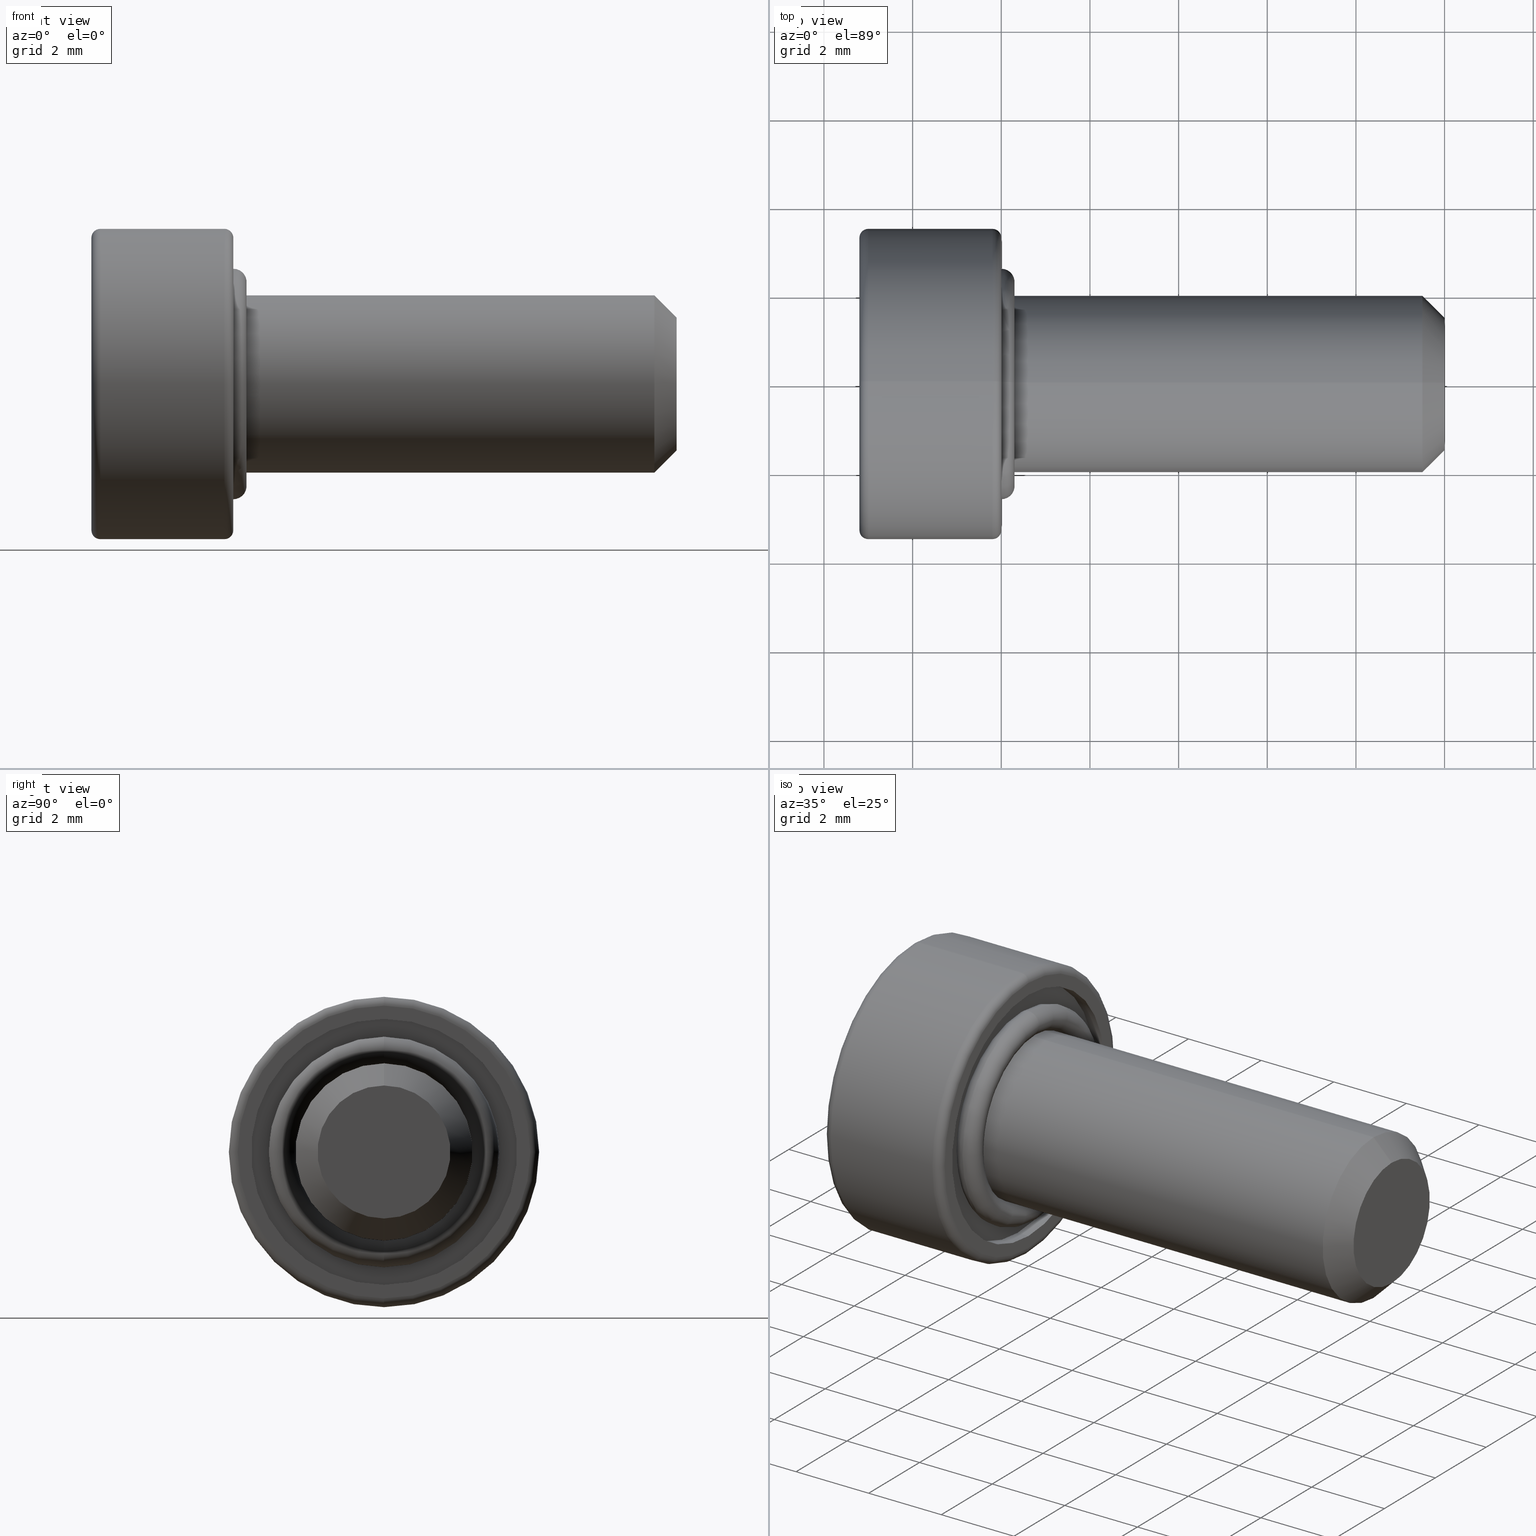
[diagram: canonical four-view strip — front | top / right | iso, engineering-drawing reading convention]
A machine part, canonical four-view strip (front | top / right | iso — engineering-drawing reading convention). The complete STEP part file that produces these views, byte-faithful:
ISO-10303-21;
HEADER;
FILE_DESCRIPTION (( 'STEP AP214' ),
    '1' );
FILE_NAME ('TL_418_M4_10.STEP',
    '2016-01-25T00:05:31',
    ( '' ),
    ( '' ),
    'SwSTEP 2.0',
    'SolidWorks 2015',
    '' );
FILE_SCHEMA (( 'AUTOMOTIVE_DESIGN' ));
ENDSEC;

DATA;
#1 = CARTESIAN_POINT ( 'NONE',  ( -3.200000000000000200, 0.0000000000000000000, 0.0000000000000000000 ) ) ;
#2 = VERTEX_POINT ( 'NONE', #151 ) ;
#3 = VECTOR ( 'NONE', #654, 1000.000000000000000 ) ;
#4 = DIRECTION ( 'NONE',  ( 0.0000000000000000000, 0.0000000000000000000, -1.000000000000000000 ) ) ;
#5 = FACE_OUTER_BOUND ( 'NONE', #79, .T. ) ;
#6 = ORIENTED_EDGE ( 'NONE', *, *, #53, .T. ) ;
#7 = DIRECTION ( 'NONE',  ( 1.000000000000000000, 0.0000000000000000000, 0.0000000000000000000 ) ) ;
#8 = AXIS2_PLACEMENT_3D ( 'NONE', #129, #391, #623 ) ;
#9 = CIRCLE ( 'NONE', #85, 1.500000000000003100 ) ;
#10 = DIRECTION ( 'NONE',  ( 1.000000000000000000, 0.0000000000000000000, 0.0000000000000000000 ) ) ;
#11 = CARTESIAN_POINT ( 'NONE',  ( 0.0000000000000000000, 0.0000000000000000000, 0.0000000000000000000 ) ) ;
#12 = CARTESIAN_POINT ( 'NONE',  ( -0.2999999999999999900, 0.0000000000000000000, 0.0000000000000000000 ) ) ;
#13 = VERTEX_POINT ( 'NONE', #40 ) ;
#14 = DIRECTION ( 'NONE',  ( 1.000000000000000000, -0.0000000000000000000, -0.0000000000000000000 ) ) ;
#15 = SHAPE_REPRESENTATION_RELATIONSHIP ( 'NONE' , 'NONE' ,  #735, #580 ) ;
#16 = EDGE_CURVE ( 'NONE', #581, #538, #692, .T. ) ;
#17 = ORIENTED_EDGE ( 'NONE', *, *, #741, .F. ) ;
#18 = CARTESIAN_POINT ( 'NONE',  ( 0.0000000000000000000, 0.0000000000000000000, 0.0000000000000000000 ) ) ;
#19 = CIRCLE ( 'NONE', #291, 2.000000000000000000 ) ;
#20 = EDGE_CURVE ( 'NONE', #77, #47, #354, .T. ) ;
#21 = CARTESIAN_POINT ( 'NONE',  ( -3.200000000000000200, 0.7216878364870081800, -1.250000000000022200 ) ) ;
#22 = ORIENTED_EDGE ( 'NONE', *, *, #532, .F. ) ;
#23 = CARTESIAN_POINT ( 'NONE',  ( -0.2999999999999999900, 0.0000000000000000000, 2.000000000000000000 ) ) ;
#24 = VERTEX_POINT ( 'NONE', #165 ) ;
#25 = CARTESIAN_POINT ( 'NONE',  ( 0.0000000000000000000, 0.0000000000000000000, 0.0000000000000000000 ) ) ;
#26 = ORIENTED_EDGE ( 'NONE', *, *, #512, .T. ) ;
#27 = SURFACE_SIDE_STYLE ('',( #604 ) ) ;
#28 = CARTESIAN_POINT ( 'NONE',  ( -0.2999999999999999900, 0.0000000000000000000, 0.0000000000000000000 ) ) ;
#29 =( NAMED_UNIT ( * ) PLANE_ANGLE_UNIT ( ) SI_UNIT ( $, .RADIAN. ) );
#30 = ORIENTED_EDGE ( 'NONE', *, *, #743, .F. ) ;
#31 = DIRECTION ( 'NONE',  ( -0.0000000000000000000, 1.000000000000000000, 1.502314598737123300E-016 ) ) ;
#32 = CARTESIAN_POINT ( 'NONE',  ( -1.900000000000000100, 0.0000000000000000000, 0.0000000000000000000 ) ) ;
#33 = DIRECTION ( 'NONE',  ( 0.0000000000000000000, 0.0000000000000000000, -1.000000000000000000 ) ) ;
#34 = LINE ( 'NONE', #317, #517 ) ;
#35 = CLOSED_SHELL ( 'NONE', ( #675, #812, #122, #807 ) ) ;
#36 = CARTESIAN_POINT ( 'NONE',  ( 0.0000000000000000000, 0.0000000000000000000, 0.0000000000000000000 ) ) ;
#37 = CARTESIAN_POINT ( 'NONE',  ( 10.00000000000000000, 0.0000000000000000000, 2.000000000000000000 ) ) ;
#38 = ORIENTED_EDGE ( 'NONE', *, *, #404, .F. ) ;
#39 = VECTOR ( 'NONE', #709, 1000.000000000000000 ) ;
#40 = CARTESIAN_POINT ( 'NONE',  ( 0.0000000000000000000, 0.0000000000000000000, -3.000000000000000400 ) ) ;
#41 = DIRECTION ( 'NONE',  ( 1.000000000000000000, 0.0000000000000000000, 0.0000000000000000000 ) ) ;
#42 = CARTESIAN_POINT ( 'NONE',  ( -3.200000000000000200, 1.443375672974113000, -2.406411063411982600E-014 ) ) ;
#43 = FILL_AREA_STYLE ('',( #445 ) ) ;
#44 = VERTEX_POINT ( 'NONE', #633 ) ;
#45 = VECTOR ( 'NONE', #284, 1000.000000000000000 ) ;
#46 = SURFACE_STYLE_USAGE ( .BOTH. , #27 ) ;
#47 = VERTEX_POINT ( 'NONE', #111 ) ;
#48 = VECTOR ( 'NONE', #524, 1000.000000000000000 ) ;
#49 = VERTEX_POINT ( 'NONE', #336 ) ;
#50 = CARTESIAN_POINT ( 'NONE',  ( -1.900000000000000100, 0.7216878364870081800, -1.250000000000022200 ) ) ;
#51 =( GEOMETRIC_REPRESENTATION_CONTEXT ( 3 ) GLOBAL_UNCERTAINTY_ASSIGNED_CONTEXT ( ( #68 ) ) GLOBAL_UNIT_ASSIGNED_CONTEXT ( ( #272, #266, #230 ) ) REPRESENTATION_CONTEXT ( 'NONE', 'WORKASPACE' ) );
#53 = EDGE_CURVE ( 'NONE', #444, #803, #676, .T. ) ;
#52 = ORIENTED_EDGE ( 'NONE', *, *, #484, .F. ) ;
#54 = CARTESIAN_POINT ( 'NONE',  ( -1.900000000000000100, -0.7216878364870932300, -1.250000000000020900 ) ) ;
#55 = LINE ( 'NONE', #194, #363 ) ;
#56 = CARTESIAN_POINT ( 'NONE',  ( -0.2000000000000000900, 4.041334437186266000E-016, 3.300000000000000300 ) ) ;
#57 = CIRCLE ( 'NONE', #473, 2.600000000000000500 ) ;
#58 = STYLED_ITEM ( 'NONE', ( #376 ), #580 ) ;
#59 = ORIENTED_EDGE ( 'NONE', *, *, #661, .F. ) ;
#60 = EDGE_LOOP ( 'NONE', ( #277, #669, #723, #608 ) ) ;
#61 = EDGE_CURVE ( 'NONE', #90, #49, #199, .T. ) ;
#62 = VECTOR ( 'NONE', #790, 1000.000000000000000 ) ;
#63 = ORIENTED_EDGE ( 'NONE', *, *, #747, .F. ) ;
#64 = DIRECTION ( 'NONE',  ( 0.0000000000000000000, 0.0000000000000000000, -1.000000000000000000 ) ) ;
#65 = ADVANCED_FACE ( 'NONE', ( #335 ), #466, .F. ) ;
#66 = EDGE_CURVE ( 'NONE', #438, #507, #659, .T. ) ;
#67 = CARTESIAN_POINT ( 'NONE',  ( -3.200000000000000200, -0.7216878364870932300, -1.250000000000020900 ) ) ;
#68 = UNCERTAINTY_MEASURE_WITH_UNIT (LENGTH_MEASURE( 1.000000000000000100E-005 ), #272, 'distance_accuracy_value', 'NONE');
#69 = DIRECTION ( 'NONE',  ( 1.000000000000000000, -0.0000000000000000000, 0.0000000000000000000 ) ) ;
#70 = FACE_OUTER_BOUND ( 'NONE', #591, .T. ) ;
#71 = FILL_AREA_STYLE ('',( #436 ) ) ;
#72 = CARTESIAN_POINT ( 'NONE',  ( -0.2999999999999999900, 0.0000000000000000000, -3.000000000000000400 ) ) ;
#73 = ORIENTED_EDGE ( 'NONE', *, *, #575, .F. ) ;
#74 = PRODUCT_DEFINITION_SHAPE ( 'NONE', 'NONE',  #548 ) ;
#75 = LINE ( 'NONE', #72, #713 ) ;
#76 = DIRECTION ( 'NONE',  ( 1.000000000000000000, 0.0000000000000000000, 0.0000000000000000000 ) ) ;
#77 = VERTEX_POINT ( 'NONE', #586 ) ;
#78 = CARTESIAN_POINT ( 'NONE',  ( -3.000000000000000000, 0.0000000000000000000, 0.0000000000000000000 ) ) ;
#79 = EDGE_LOOP ( 'NONE', ( #186, #123, #333, #525, #344, #389 ) ) ;
#80 = FACE_OUTER_BOUND ( 'NONE', #60, .T. ) ;
#81 = PLANE ( 'NONE',  #233 ) ;
#82 = DIRECTION ( 'NONE',  ( 1.000000000000000000, 0.0000000000000000000, 0.0000000000000000000 ) ) ;
#83 = DIRECTION ( 'NONE',  ( 0.0000000000000000000, 1.000000000000000000, -1.224646799147353200E-016 ) ) ;
#84 = CONICAL_SURFACE ( 'NONE', #637, 1.500000000000003100, 0.7853981633974465000 ) ;
#85 = AXIS2_PLACEMENT_3D ( 'NONE', #520, #805, #343 ) ;
#86 = EDGE_CURVE ( 'NONE', #435, #109, #19, .T. ) ;
#87 = DIRECTION ( 'NONE',  ( -1.000000000000000000, -0.0000000000000000000, -0.0000000000000000000 ) ) ;
#88 = ORIENTED_EDGE ( 'NONE', *, *, #681, .F. ) ;
#89 = DIRECTION ( 'NONE',  ( 1.000000000000000000, -0.0000000000000000000, -0.0000000000000000000 ) ) ;
#90 = VERTEX_POINT ( 'NONE', #258 ) ;
#91 = CARTESIAN_POINT ( 'NONE',  ( 0.0000000000000000000, 0.0000000000000000000, -2.300000000000000300 ) ) ;
#92 = CARTESIAN_POINT ( 'NONE',  ( 10.00000000000000000, 0.0000000000000000000, 0.0000000000000000000 ) ) ;
#93 = DIRECTION ( 'NONE',  ( -1.000000000000000000, -0.0000000000000000000, -0.0000000000000000000 ) ) ;
#94 = PRESENTATION_LAYER_ASSIGNMENT (  '', '', ( #58 ) ) ;
#95 = DIRECTION ( 'NONE',  ( 0.0000000000000000000, 0.0000000000000000000, -1.000000000000000000 ) ) ;
#96 = ORIENTED_EDGE ( 'NONE', *, *, #254, .T. ) ;
#97 = LINE ( 'NONE', #221, #569 ) ;
#98 = EDGE_CURVE ( 'NONE', #360, #90, #487, .T. ) ;
#99 = ORIENTED_EDGE ( 'NONE', *, *, #655, .F. ) ;
#100 = EDGE_CURVE ( 'NONE', #2, #662, #310, .T. ) ;
#101 = VERTEX_POINT ( 'NONE', #782 ) ;
#102 = DIRECTION ( 'NONE',  ( 0.0000000000000000000, 0.0000000000000000000, -1.000000000000000000 ) ) ;
#103 = DIRECTION ( 'NONE',  ( 0.0000000000000000000, 0.0000000000000000000, -1.000000000000000000 ) ) ;
#104 = TOROIDAL_SURFACE ( 'NONE', #324, 3.300000000000000300, 0.2000000000000000100 ) ;
#105 =( NAMED_UNIT ( * ) SI_UNIT ( $, .STERADIAN. ) SOLID_ANGLE_UNIT ( ) );
#106 = VERTEX_POINT ( 'NONE', #210 ) ;
#107 = DIRECTION ( 'NONE',  ( -0.0000000000000000000, -1.000000000000000000, -0.0000000000000000000 ) ) ;
#108 = CARTESIAN_POINT ( 'NONE',  ( -1.900000000000000100, 0.7216878364870081800, -1.250000000000022200 ) ) ;
#109 = VERTEX_POINT ( 'NONE', #147 ) ;
#110 = DIRECTION ( 'NONE',  ( 1.000000000000000000, 0.0000000000000000000, 0.0000000000000000000 ) ) ;
#111 = CARTESIAN_POINT ( 'NONE',  ( -3.200000000000000200, -0.7216878364870070700, 1.250000000000022400 ) ) ;
#112 = COLOUR_RGB ( '',0.7921568627450980000, 0.8196078431372548800, 0.9333333333333333500 ) ;
#113 = VECTOR ( 'NONE', #551, 1000.000000000000200 ) ;
#114 = VERTEX_POINT ( 'NONE', #478 ) ;
#115 = AXIS2_PLACEMENT_3D ( 'NONE', #32, #69, #240 ) ;
#116 = ADVANCED_FACE ( 'NONE', ( #293 ), #162, .T. ) ;
#117 = PLANE ( 'NONE',  #553 ) ;
#118 = ORIENTED_EDGE ( 'NONE', *, *, #571, .T. ) ;
#119 = ADVANCED_FACE ( 'NONE', ( #634, #143 ), #117, .F. ) ;
#120 = LINE ( 'NONE', #789, #256 ) ;
#121 = ORIENTED_EDGE ( 'NONE', *, *, #404, .T. ) ;
#122 = ADVANCED_FACE ( 'NONE', ( #469 ), #615, .T. ) ;
#123 = ORIENTED_EDGE ( 'NONE', *, *, #730, .T. ) ;
#124 = EDGE_LOOP ( 'NONE', ( #164, #773, #462, #698, #750, #329 ) ) ;
#125 = CARTESIAN_POINT ( 'NONE',  ( -3.200000000000000200, 0.0000000000000000000, 0.0000000000000000000 ) ) ;
#126 = AXIS2_PLACEMENT_3D ( 'NONE', #537, #216, #543 ) ;
#127 = EDGE_CURVE ( 'NONE', #538, #625, #180, .T. ) ;
#128 = LINE ( 'NONE', #166, #368 ) ;
#129 = CARTESIAN_POINT ( 'NONE',  ( 0.0000000000000000000, 0.0000000000000000000, 0.0000000000000000000 ) ) ;
#130 = CARTESIAN_POINT ( 'NONE',  ( 0.0000000000000000000, 0.0000000000000000000, 0.0000000000000000000 ) ) ;
#131 = CARTESIAN_POINT ( 'NONE',  ( -3.000000000000000000, 0.0000000000000000000, 0.0000000000000000000 ) ) ;
#132 = CYLINDRICAL_SURFACE ( 'NONE', #712, 3.000000000000000400 ) ;
#133 = VECTOR ( 'NONE', #377, 1000.000000000000100 ) ;
#134 = CARTESIAN_POINT ( 'NONE',  ( 0.0000000000000000000, 0.0000000000000000000, 0.0000000000000000000 ) ) ;
#135 = CARTESIAN_POINT ( 'NONE',  ( -3.000000000000000000, 4.041334437186266000E-016, 3.300000000000000300 ) ) ;
#136 = MECHANICAL_DESIGN_GEOMETRIC_PRESENTATION_REPRESENTATION (  '', ( #58 ), #177 ) ;
#137 = DIRECTION ( 'NONE',  ( 0.0000000000000000000, 1.000000000000000000, -9.013887592422725400E-016 ) ) ;
#138 = DIRECTION ( 'NONE',  ( 1.000000000000000000, 0.0000000000000000000, 0.0000000000000000000 ) ) ;
#139 =( LENGTH_UNIT ( ) NAMED_UNIT ( * ) SI_UNIT ( .MILLI., .METRE. ) );
#140 = EDGE_CURVE ( 'NONE', #738, #44, #448, .T. ) ;
#141 = EDGE_CURVE ( 'NONE', #799, #44, #798, .T. ) ;
#142 = DIRECTION ( 'NONE',  ( 0.0000000000000000000, -0.5000000000000395200, -0.8660254037844157300 ) ) ;
#143 = FACE_OUTER_BOUND ( 'NONE', #756, .T. ) ;
#144 = PLANE ( 'NONE',  #414 ) ;
#145 = EDGE_LOOP ( 'NONE', ( #397, #297, #583, #602 ) ) ;
#146 = ORIENTED_EDGE ( 'NONE', *, *, #730, .F. ) ;
#147 = CARTESIAN_POINT ( 'NONE',  ( 9.500000000000001800, 0.0000000000000000000, 2.000000000000000000 ) ) ;
#148 = CARTESIAN_POINT ( 'NONE',  ( -3.000000000000000000, 4.286263797015737100E-016, 3.500000000000000400 ) ) ;
#149 = DIRECTION ( 'NONE',  ( 0.0000000000000000000, 0.0000000000000000000, -1.000000000000000000 ) ) ;
#150 = CIRCLE ( 'NONE', #584, 3.500000000000000400 ) ;
#151 = CARTESIAN_POINT ( 'NONE',  ( -3.200000000000000200, 0.7216878364870920000, 1.250000000000022600 ) ) ;
#152 = PRODUCT_CONTEXT ( 'NONE', #793, 'mechanical' ) ;
#153 = LINE ( 'NONE', #558, #133 ) ;
#154 = CARTESIAN_POINT ( 'NONE',  ( -1.900000000000000100, 0.7216878364870081800, -1.250000000000022200 ) ) ;
#155 = PRESENTATION_STYLE_ASSIGNMENT (( #204 ) ) ;
#156 = CARTESIAN_POINT ( 'NONE',  ( -3.200000000000000200, 0.0000000000000000000, 0.0000000000000000000 ) ) ;
#157 = AXIS2_PLACEMENT_3D ( 'NONE', #314, #648, #255 ) ;
#158 = DIRECTION ( 'NONE',  ( 0.0000000000000000000, 0.0000000000000000000, -1.000000000000000000 ) ) ;
#159 = CARTESIAN_POINT ( 'NONE',  ( -1.900000000000000100, -1.443375672974113600, 2.556978512743960800E-014 ) ) ;
#160 = ORIENTED_EDGE ( 'NONE', *, *, #98, .F. ) ;
#161 = DIRECTION ( 'NONE',  ( -1.000000000000000000, -0.0000000000000000000, -0.0000000000000000000 ) ) ;
#162 = TOROIDAL_SURFACE ( 'NONE', #470, 3.300000000000000300, 0.2000000000000000100 ) ;
#163 = DIRECTION ( 'NONE',  ( -0.0000000000000000000, -1.000000000000000000, -0.0000000000000000000 ) ) ;
#164 = ORIENTED_EDGE ( 'NONE', *, *, #295, .F. ) ;
#165 = CARTESIAN_POINT ( 'NONE',  ( 0.0000000000000000000, 3.673940397442060400E-016, 3.000000000000000400 ) ) ;
#166 = CARTESIAN_POINT ( 'NONE',  ( 10.00000000000000000, 0.0000000000000000000, 1.500000000000003100 ) ) ;
#167 = AXIS2_PLACEMENT_3D ( 'NONE', #173, #632, #456 ) ;
#168 = EDGE_CURVE ( 'NONE', #549, #435, #120, .T. ) ;
#169 = EDGE_LOOP ( 'NONE', ( #588, #566, #337, #640 ) ) ;
#170 = LINE ( 'NONE', #636, #3 ) ;
#171 = PRODUCT_DEFINITION_SHAPE ( 'NONE', 'NONE',  #820 ) ;
#172 = CYLINDRICAL_SURFACE ( 'NONE', #672, 3.500000000000000400 ) ;
#173 = CARTESIAN_POINT ( 'NONE',  ( 0.0000000000000000000, 0.0000000000000000000, 0.0000000000000000000 ) ) ;
#174 = EDGE_LOOP ( 'NONE', ( #616, #791, #175, #816 ) ) ;
#175 = ORIENTED_EDGE ( 'NONE', *, *, #797, .T. ) ;
#176 = SURFACE_STYLE_FILL_AREA ( #43 ) ;
#177 =( GEOMETRIC_REPRESENTATION_CONTEXT ( 3 ) GLOBAL_UNCERTAINTY_ASSIGNED_CONTEXT ( ( #429 ) ) GLOBAL_UNIT_ASSIGNED_CONTEXT ( ( #627, #563, #641 ) ) REPRESENTATION_CONTEXT ( 'NONE', 'WORKASPACE' ) );
#178 = EDGE_LOOP ( 'NONE', ( #502, #332, #600, #220 ) ) ;
#179 = ADVANCED_FACE ( 'NONE', ( #774 ), #84, .T. ) ;
#180 = LINE ( 'NONE', #67, #276 ) ;
#181 = AXIS2_PLACEMENT_3D ( 'NONE', #401, #705, #472 ) ;
#182 = VERTEX_POINT ( 'NONE', #362 ) ;
#183 = FILL_AREA_STYLE_COLOUR ( '', #452 ) ;
#184 = EDGE_CURVE ( 'NONE', #302, #581, #241, .T. ) ;
#185 = FACE_OUTER_BOUND ( 'NONE', #451, .T. ) ;
#186 = ORIENTED_EDGE ( 'NONE', *, *, #701, .T. ) ;
#187 = ADVANCED_FACE ( 'NONE', ( #579 ), #559, .T. ) ;
#188 = DIRECTION ( 'NONE',  ( 0.0000000000000000000, 0.0000000000000000000, -1.000000000000000000 ) ) ;
#189 = FACE_OUTER_BOUND ( 'NONE', #415, .T. ) ;
#190 = CARTESIAN_POINT ( 'NONE',  ( -1.900000000000000100, -0.7216878364870932300, -1.250000000000020900 ) ) ;
#191 = CIRCLE ( 'NONE', #511, 3.300000000000000300 ) ;
#192 = ORIENTED_EDGE ( 'NONE', *, *, #532, .T. ) ;
#193 = SURFACE_STYLE_USAGE ( .BOTH. , #690 ) ;
#194 = CARTESIAN_POINT ( 'NONE',  ( -3.200000000000000200, -1.443375672974113600, 2.556978512743960800E-014 ) ) ;
#195 = PRODUCT ( 'screw', 'screw', '', ( #152 ) ) ;
#196 = ORIENTED_EDGE ( 'NONE', *, *, #658, .F. ) ;
#197 = AXIS2_PLACEMENT_3D ( 'NONE', #361, #748, #296 ) ;
#198 = DIRECTION ( 'NONE',  ( 0.0000000000000000000, -9.013887592422725400E-016, -1.000000000000000000 ) ) ;
#199 = CIRCLE ( 'NONE', #224, 2.600000000000000500 ) ;
#200 = EDGE_LOOP ( 'NONE', ( #374, #465, #499, #22 ) ) ;
#201 = DIRECTION ( 'NONE',  ( 0.0000000000000000000, 0.0000000000000000000, -1.000000000000000000 ) ) ;
#202 = LINE ( 'NONE', #159, #508 ) ;
#203 = ORIENTED_EDGE ( 'NONE', *, *, #86, .T. ) ;
#204 = SURFACE_STYLE_USAGE ( .BOTH. , #318 ) ;
#205 = UNCERTAINTY_MEASURE_WITH_UNIT (LENGTH_MEASURE( 1.000000000000000100E-005 ), #139, 'distance_accuracy_value', 'NONE');
#206 = DIRECTION ( 'NONE',  ( 0.0000000000000000000, 0.0000000000000000000, -1.000000000000000000 ) ) ;
#207 = AXIS2_PLACEMENT_3D ( 'NONE', #396, #110, #33 ) ;
#208 = CARTESIAN_POINT ( 'NONE',  ( 0.0000000000000000000, 2.816687638038912500E-016, 2.300000000000000300 ) ) ;
#209 = CIRCLE ( 'NONE', #370, 0.2999999999999999300 ) ;
#210 = CARTESIAN_POINT ( 'NONE',  ( -3.200000000000000200, 0.0000000000000000000, -3.300000000000000300 ) ) ;
#211 = ORIENTED_EDGE ( 'NONE', *, *, #575, .T. ) ;
#212 = DIRECTION ( 'NONE',  ( 0.0000000000000000000, 0.0000000000000000000, -1.000000000000000000 ) ) ;
#213 = FACE_OUTER_BOUND ( 'NONE', #638, .T. ) ;
#214 = ORIENTED_EDGE ( 'NONE', *, *, #536, .T. ) ;
#215 = DIRECTION ( 'NONE',  ( -1.000000000000000000, -0.0000000000000000000, -0.0000000000000000000 ) ) ;
#216 = DIRECTION ( 'NONE',  ( -1.000000000000000000, 0.0000000000000000000, 0.0000000000000000000 ) ) ;
#217 = CARTESIAN_POINT ( 'NONE',  ( -3.200000000000000200, -0.7216878364870070700, 1.250000000000022400 ) ) ;
#218 = DIRECTION ( 'NONE',  ( 1.000000000000000000, 0.0000000000000000000, 0.0000000000000000000 ) ) ;
#219 = ORIENTED_EDGE ( 'NONE', *, *, #779, .T. ) ;
#220 = ORIENTED_EDGE ( 'NONE', *, *, #384, .F. ) ;
#221 = CARTESIAN_POINT ( 'NONE',  ( -1.900000000000000100, 0.7216878364870920000, 1.250000000000022600 ) ) ;
#222 = ORIENTED_EDGE ( 'NONE', *, *, #439, .T. ) ;
#223 = LINE ( 'NONE', #54, #62 ) ;
#224 = AXIS2_PLACEMENT_3D ( 'NONE', #25, #393, #158 ) ;
#225 = EDGE_CURVE ( 'NONE', #101, #799, #426, .T. ) ;
#226 = CARTESIAN_POINT ( 'NONE',  ( -3.200000000000000200, 0.0000000000000000000, -3.500000000000000400 ) ) ;
#227 = FACE_OUTER_BOUND ( 'NONE', #736, .T. ) ;
#228 = ADVANCED_FACE ( 'NONE', ( #749 ), #506, .F. ) ;
#229 = VERTEX_POINT ( 'NONE', #242 ) ;
#230 =( NAMED_UNIT ( * ) SI_UNIT ( $, .STERADIAN. ) SOLID_ANGLE_UNIT ( ) );
#231 = EDGE_LOOP ( 'NONE', ( #279, #30, #815, #765 ) ) ;
#232 = ORIENTED_EDGE ( 'NONE', *, *, #599, .T. ) ;
#233 = AXIS2_PLACEMENT_3D ( 'NONE', #700, #7, #501 ) ;
#234 = ORIENTED_EDGE ( 'NONE', *, *, #53, .F. ) ;
#235 = VECTOR ( 'NONE', #87, 1000.000000000000000 ) ;
#236 = ORIENTED_EDGE ( 'NONE', *, *, #127, .T. ) ;
#237 = DIRECTION ( 'NONE',  ( 1.000000000000000000, 0.0000000000000000000, 0.0000000000000000000 ) ) ;
#238 = ADVANCED_FACE ( 'NONE', ( #227 ), #104, .T. ) ;
#239 = ORIENTED_EDGE ( 'NONE', *, *, #225, .F. ) ;
#240 = DIRECTION ( 'NONE',  ( 0.0000000000000000000, 0.0000000000000000000, -1.000000000000000000 ) ) ;
#241 = LINE ( 'NONE', #154, #409 ) ;
#242 = CARTESIAN_POINT ( 'NONE',  ( -1.900000000000000100, -1.443375672974113600, 2.556978512743960800E-014 ) ) ;
#243 = ORIENTED_EDGE ( 'NONE', *, *, #304, .T. ) ;
#244 =( NAMED_UNIT ( * ) SI_UNIT ( $, .STERADIAN. ) SOLID_ANGLE_UNIT ( ) );
#245 = CARTESIAN_POINT ( 'NONE',  ( -3.673940397442058300E-017, 0.0000000000000000000, 0.0000000000000000000 ) ) ;
#246 =( NAMED_UNIT ( * ) PLANE_ANGLE_UNIT ( ) SI_UNIT ( $, .RADIAN. ) );
#247 = DIRECTION ( 'NONE',  ( 0.0000000000000000000, 0.0000000000000000000, 1.000000000000000000 ) ) ;
#248 = PRODUCT ( 'TL_418_M4_10', 'TL_418_M4_10', '', ( #720 ) ) ;
#249 = ORIENTED_EDGE ( 'NONE', *, *, #536, .F. ) ;
#250 = VECTOR ( 'NONE', #263, 1000.000000000000000 ) ;
#251 =( REPRESENTATION_RELATIONSHIP ('NONE','NONE', #271, #735 ) REPRESENTATION_RELATIONSHIP_WITH_TRANSFORMATION ( #275 )SHAPE_REPRESENTATION_RELATIONSHIP( ) );
#252 = DIRECTION ( 'NONE',  ( 0.0000000000000000000, 0.0000000000000000000, -1.000000000000000000 ) ) ;
#253 = DIRECTION ( 'NONE',  ( 0.0000000000000000000, 0.0000000000000000000, -1.000000000000000000 ) ) ;
#254 = EDGE_CURVE ( 'NONE', #438, #47, #388, .T. ) ;
#255 = DIRECTION ( 'NONE',  ( 0.0000000000000000000, 0.0000000000000000000, -1.000000000000000000 ) ) ;
#256 = VECTOR ( 'NONE', #652, 999.9999999999998900 ) ;
#257 = EDGE_LOOP ( 'NONE', ( #677, #273 ) ) ;
#258 = CARTESIAN_POINT ( 'NONE',  ( 0.0000000000000000000, 3.184081677783118700E-016, 2.600000000000000500 ) ) ;
#259 = DIRECTION ( 'NONE',  ( 1.000000000000000000, 0.0000000000000000000, 0.0000000000000000000 ) ) ;
#260 = DIRECTION ( 'NONE',  ( 1.000000000000000000, 0.0000000000000000000, 0.0000000000000000000 ) ) ;
#261 = CARTESIAN_POINT ( 'NONE',  ( -0.2999999999999999900, 0.0000000000000000000, 0.0000000000000000000 ) ) ;
#262 = CARTESIAN_POINT ( 'NONE',  ( -1.900000000000000100, 0.7216878364870920000, 1.250000000000022600 ) ) ;
#263 = DIRECTION ( 'NONE',  ( 1.000000000000000000, 0.0000000000000000000, 0.0000000000000000000 ) ) ;
#264 = CARTESIAN_POINT ( 'NONE',  ( 0.0000000000000000000, 2.816687638038912500E-016, 2.300000000000000300 ) ) ;
#265 = VECTOR ( 'NONE', #31, 1000.000000000000000 ) ;
#266 =( NAMED_UNIT ( * ) PLANE_ANGLE_UNIT ( ) SI_UNIT ( $, .RADIAN. ) );
#267 = CIRCLE ( 'NONE', #305, 3.500000000000000400 ) ;
#268 = DIRECTION ( 'NONE',  ( -0.0000000000000000000, 0.4999999999999800700, -0.8660254037844501400 ) ) ;
#269 = EDGE_LOOP ( 'NONE', ( #6, #211 ) ) ;
#270 = CARTESIAN_POINT ( 'NONE',  ( 0.0000000000000000000, 4.163799117101001500E-016, 3.300000000000000300 ) ) ;
#271 = SHAPE_REPRESENTATION ( 'TL_418_M4_10', ( #417, #330 ), #375 ) ;
#272 =( LENGTH_UNIT ( ) NAMED_UNIT ( * ) SI_UNIT ( .MILLI., .METRE. ) );
#273 = ORIENTED_EDGE ( 'NONE', *, *, #488, .F. ) ;
#274 = AXIS2_PLACEMENT_3D ( 'NONE', #245, #704, #301 ) ;
#275 = ITEM_DEFINED_TRANSFORMATION ( 'NONE', 'NONE', #330,  #8 ) ;
#276 = VECTOR ( 'NONE', #814, 1000.000000000000000 ) ;
#277 = ORIENTED_EDGE ( 'NONE', *, *, #304, .F. ) ;
#278 = DIRECTION ( 'NONE',  ( 0.0000000000000000000, 0.0000000000000000000, -1.000000000000000000 ) ) ;
#279 = ORIENTED_EDGE ( 'NONE', *, *, #100, .T. ) ;
#280 = CIRCLE ( 'NONE', #530, 0.2999999999999999300 ) ;
#281 = UNCERTAINTY_MEASURE_WITH_UNIT (LENGTH_MEASURE( 1.000000000000000100E-005 ), #783, 'distance_accuracy_value', 'NONE');
#282 = AXIS2_PLACEMENT_3D ( 'NONE', #734, #163, #201 ) ;
#283 = DIRECTION ( 'NONE',  ( 1.000000000000000000, 0.0000000000000000000, 0.0000000000000000000 ) ) ;
#284 = DIRECTION ( 'NONE',  ( -1.000000000000000000, -0.0000000000000000000, -0.0000000000000000000 ) ) ;
#285 = AXIS2_PLACEMENT_3D ( 'NONE', #758, #198, #137 ) ;
#286 = LINE ( 'NONE', #325, #265 ) ;
#287 = CONICAL_SURFACE ( 'NONE', #811, 1.500000000000003100, 0.7853981633974465000 ) ;
#288 = EDGE_LOOP ( 'NONE', ( #59, #203, #710, #694 ) ) ;
#289 = AXIS2_PLACEMENT_3D ( 'NONE', #134, #777, #688 ) ;
#290 = ADVANCED_FACE ( 'NONE', ( #539, #732 ), #144, .T. ) ;
#291 = AXIS2_PLACEMENT_3D ( 'NONE', #461, #545, #103 ) ;
#292 = DIRECTION ( 'NONE',  ( 1.000000000000000000, -0.0000000000000000000, -0.0000000000000000000 ) ) ;
#293 = FACE_OUTER_BOUND ( 'NONE', #350, .T. ) ;
#294 =( GEOMETRIC_REPRESENTATION_CONTEXT ( 3 ) GLOBAL_UNCERTAINTY_ASSIGNED_CONTEXT ( ( #205 ) ) GLOBAL_UNIT_ASSIGNED_CONTEXT ( ( #139, #29, #105 ) ) REPRESENTATION_CONTEXT ( 'NONE', 'WORKASPACE' ) );
#295 = EDGE_CURVE ( 'NONE', #625, #77, #55, .T. ) ;
#296 = DIRECTION ( 'NONE',  ( 0.0000000000000000000, 0.0000000000000000000, -1.000000000000000000 ) ) ;
#297 = ORIENTED_EDGE ( 'NONE', *, *, #527, .F. ) ;
#298 = PLANE ( 'NONE',  #585 ) ;
#299 = FACE_OUTER_BOUND ( 'NONE', #476, .T. ) ;
#300 = FACE_OUTER_BOUND ( 'NONE', #200, .T. ) ;
#301 = DIRECTION ( 'NONE',  ( 0.0000000000000000000, 0.0000000000000000000, -1.000000000000000000 ) ) ;
#302 = VERTEX_POINT ( 'NONE', #619 ) ;
#303 = CYLINDRICAL_SURFACE ( 'NONE', #729, 3.000000000000000400 ) ;
#304 = EDGE_CURVE ( 'NONE', #90, #360, #209, .T. ) ;
#305 = AXIS2_PLACEMENT_3D ( 'NONE', #78, #76, #373 ) ;
#306 = CARTESIAN_POINT ( 'NONE',  ( 0.0000000000000000000, 0.0000000000000000000, -3.300000000000000300 ) ) ;
#307 = CARTESIAN_POINT ( 'NONE',  ( -0.2999999999999999900, 0.0000000000000000000, 0.0000000000000000000 ) ) ;
#308 = APPLICATION_CONTEXT ( 'automotive_design' ) ;
#309 = CARTESIAN_POINT ( 'NONE',  ( 0.0000000000000000000, 0.0000000000000000000, 0.0000000000000000000 ) ) ;
#310 = LINE ( 'NONE', #806, #813 ) ;
#311 = DIRECTION ( 'NONE',  ( -1.000000000000000000, 0.0000000000000000000, 0.0000000000000000000 ) ) ;
#312 = ORIENTED_EDGE ( 'NONE', *, *, #614, .T. ) ;
#313 = DIRECTION ( 'NONE',  ( 0.0000000000000000000, 0.8660254037844165000, -0.5000000000000383000 ) ) ;
#314 = CARTESIAN_POINT ( 'NONE',  ( -0.2000000000000000900, 0.0000000000000000000, 0.0000000000000000000 ) ) ;
#315 = DIRECTION ( 'NONE',  ( 0.0000000000000000000, 0.0000000000000000000, -1.000000000000000000 ) ) ;
#316 = AXIS2_PLACEMENT_3D ( 'NONE', #578, #724, #721 ) ;
#317 = CARTESIAN_POINT ( 'NONE',  ( -1.900000000000000100, 1.443375672974113000, -2.406411063411982600E-014 ) ) ;
#318 = SURFACE_SIDE_STYLE ('',( #176 ) ) ;
#319 = CIRCLE ( 'NONE', #541, 2.000000000000000000 ) ;
#320 = DIRECTION ( 'NONE',  ( 0.0000000000000000000, 1.000000000000000000, -1.224646799147353200E-016 ) ) ;
#321 = LINE ( 'NONE', #37, #650 ) ;
#322 = DIRECTION ( 'NONE',  ( -1.000000000000000000, -0.0000000000000000000, -0.0000000000000000000 ) ) ;
#323 = CARTESIAN_POINT ( 'NONE',  ( 10.00000000000000000, 0.0000000000000000000, 0.0000000000000000000 ) ) ;
#324 = AXIS2_PLACEMENT_3D ( 'NONE', #513, #138, #503 ) ;
#325 = CARTESIAN_POINT ( 'NONE',  ( -3.200000000000000200, 0.7216878364870920000, 1.250000000000022600 ) ) ;
#326 = CIRCLE ( 'NONE', #598, 0.2000000000000000900 ) ;
#327 = DIRECTION ( 'NONE',  ( 1.000000000000000000, 0.0000000000000000000, 0.0000000000000000000 ) ) ;
#328 = CARTESIAN_POINT ( 'NONE',  ( -0.2999999999999999900, 2.449293598294706400E-016, -2.000000000000000000 ) ) ;
#329 = ORIENTED_EDGE ( 'NONE', *, *, #20, .F. ) ;
#330 = AXIS2_PLACEMENT_3D ( 'NONE', #682, #372, #259 ) ;
#331 = CARTESIAN_POINT ( 'NONE',  ( -1.900000000000000100, 0.7216878364870920000, 1.250000000000022600 ) ) ;
#332 = ORIENTED_EDGE ( 'NONE', *, *, #661, .T. ) ;
#333 = ORIENTED_EDGE ( 'NONE', *, *, #424, .T. ) ;
#334 = DIRECTION ( 'NONE',  ( 1.000000000000000000, 0.0000000000000000000, 0.0000000000000000000 ) ) ;
#335 = FACE_OUTER_BOUND ( 'NONE', #169, .T. ) ;
#336 = CARTESIAN_POINT ( 'NONE',  ( 0.0000000000000000000, 0.0000000000000000000, -2.600000000000000500 ) ) ;
#337 = ORIENTED_EDGE ( 'NONE', *, *, #184, .F. ) ;
#338 = AXIS2_PLACEMENT_3D ( 'NONE', #50, #313, #603 ) ;
#339 = DIRECTION ( 'NONE',  ( -1.000000000000000000, -0.0000000000000000000, -0.0000000000000000000 ) ) ;
#340 = FACE_OUTER_BOUND ( 'NONE', #231, .T. ) ;
#341 = AXIS2_PLACEMENT_3D ( 'NONE', #408, #454, #796 ) ;
#342 = EDGE_CURVE ( 'NONE', #799, #182, #684, .T. ) ;
#343 = DIRECTION ( 'NONE',  ( 0.0000000000000000000, 0.0000000000000000000, -1.000000000000000000 ) ) ;
#344 = ORIENTED_EDGE ( 'NONE', *, *, #351, .T. ) ;
#345 = CARTESIAN_POINT ( 'NONE',  ( -0.2000000000000000900, 0.0000000000000000000, 0.0000000000000000000 ) ) ;
#346 = FACE_OUTER_BOUND ( 'NONE', #647, .T. ) ;
#347 = ORIENTED_EDGE ( 'NONE', *, *, #342, .T. ) ;
#348 = CYLINDRICAL_SURFACE ( 'NONE', #423, 2.000000000000000000 ) ;
#349 = ADVANCED_FACE ( 'NONE', ( #70 ), #298, .F. ) ;
#350 = EDGE_LOOP ( 'NONE', ( #239, #703, #733, #761 ) ) ;
#351 = EDGE_CURVE ( 'NONE', #507, #302, #34, .T. ) ;
#352 = AXIS2_PLACEMENT_3D ( 'NONE', #12, #574, #188 ) ;
#353 = ORIENTED_EDGE ( 'NONE', *, *, #797, .F. ) ;
#354 = LINE ( 'NONE', #217, #531 ) ;
#355 = EDGE_LOOP ( 'NONE', ( #214, #121 ) ) ;
#356 = ADVANCED_FACE ( 'NONE', ( #346 ), #172, .T. ) ;
#357 = VECTOR ( 'NONE', #767, 1000.000000000000000 ) ;
#358 = FILL_AREA_STYLE ('',( #183 ) ) ;
#359 = ADVANCED_FACE ( 'NONE', ( #189 ), #522, .F. ) ;
#360 = VERTEX_POINT ( 'NONE', #718 ) ;
#361 = CARTESIAN_POINT ( 'NONE',  ( 0.0000000000000000000, 0.0000000000000000000, 0.0000000000000000000 ) ) ;
#362 = CARTESIAN_POINT ( 'NONE',  ( -3.000000000000000000, 0.0000000000000000000, -3.500000000000000400 ) ) ;
#363 = VECTOR ( 'NONE', #561, 1000.000000000000200 ) ;
#364 = ORIENTED_EDGE ( 'NONE', *, *, #696, .F. ) ;
#365 = ORIENTED_EDGE ( 'NONE', *, *, #779, .F. ) ;
#366 = DIRECTION ( 'NONE',  ( 1.000000000000000000, -0.0000000000000000000, -0.0000000000000000000 ) ) ;
#367 = CARTESIAN_POINT ( 'NONE',  ( -1.900000000000000100, 0.7216878364870920000, 1.250000000000022600 ) ) ;
#368 = VECTOR ( 'NONE', #666, 999.9999999999998900 ) ;
#369 = VERTEX_POINT ( 'NONE', #392 ) ;
#370 = AXIS2_PLACEMENT_3D ( 'NONE', #208, #83, #427 ) ;
#371 = CARTESIAN_POINT ( 'NONE',  ( -3.200000000000000200, 4.286263797015737100E-016, 3.500000000000000400 ) ) ;
#372 = DIRECTION ( 'NONE',  ( 0.0000000000000000000, 0.0000000000000000000, 1.000000000000000000 ) ) ;
#373 = DIRECTION ( 'NONE',  ( 0.0000000000000000000, 0.0000000000000000000, -1.000000000000000000 ) ) ;
#374 = ORIENTED_EDGE ( 'NONE', *, *, #557, .F. ) ;
#375 =( GEOMETRIC_REPRESENTATION_CONTEXT ( 3 ) GLOBAL_UNCERTAINTY_ASSIGNED_CONTEXT ( ( #281 ) ) GLOBAL_UNIT_ASSIGNED_CONTEXT ( ( #783, #246, #244 ) ) REPRESENTATION_CONTEXT ( 'NONE', 'WORKASPACE' ) );
#376 = PRESENTATION_STYLE_ASSIGNMENT (( #193 ) ) ;
#377 = DIRECTION ( 'NONE',  ( -0.0000000000000000000, 0.5000000000000395200, 0.8660254037844157300 ) ) ;
#378 = EDGE_LOOP ( 'NONE', ( #660, #514 ) ) ;
#379 = CIRCLE ( 'NONE', #126, 2.000000000000000000 ) ;
#380 =( LENGTH_UNIT ( ) NAMED_UNIT ( * ) SI_UNIT ( .MILLI., .METRE. ) );
#381 = AXIS2_PLACEMENT_3D ( 'NONE', #264, #320, #447 ) ;
#382 = DIRECTION ( 'NONE',  ( 1.000000000000000000, -0.0000000000000000000, -0.0000000000000000000 ) ) ;
#383 = AXIS2_PLACEMENT_3D ( 'NONE', #702, #385, #102 ) ;
#384 = EDGE_CURVE ( 'NONE', #109, #494, #321, .T. ) ;
#385 = DIRECTION ( 'NONE',  ( 1.000000000000000000, 0.0000000000000000000, 0.0000000000000000000 ) ) ;
#386 = DIRECTION ( 'NONE',  ( 1.000000000000000000, 0.0000000000000000000, 0.0000000000000000000 ) ) ;
#387 = DIRECTION ( 'NONE',  ( 0.0000000000000000000, 1.000000000000000000, -1.224646799147353200E-016 ) ) ;
#388 = LINE ( 'NONE', #628, #707 ) ;
#389 = ORIENTED_EDGE ( 'NONE', *, *, #184, .T. ) ;
#390 = DIRECTION ( 'NONE',  ( 0.0000000000000000000, 0.0000000000000000000, -1.000000000000000000 ) ) ;
#391 = DIRECTION ( 'NONE',  ( 0.0000000000000000000, 0.0000000000000000000, 1.000000000000000000 ) ) ;
#392 = CARTESIAN_POINT ( 'NONE',  ( -0.2999999999999999900, 0.0000000000000000000, -3.000000000000000400 ) ) ;
#393 = DIRECTION ( 'NONE',  ( 1.000000000000000000, -0.0000000000000000000, -0.0000000000000000000 ) ) ;
#394 = ORIENTED_EDGE ( 'NONE', *, *, #696, .T. ) ;
#395 = CARTESIAN_POINT ( 'NONE',  ( -0.2000000000000000900, 0.0000000000000000000, 0.0000000000000000000 ) ) ;
#396 = CARTESIAN_POINT ( 'NONE',  ( -0.2000000000000000900, 0.0000000000000000000, 0.0000000000000000000 ) ) ;
#397 = ORIENTED_EDGE ( 'NONE', *, *, #571, .F. ) ;
#398 = EDGE_CURVE ( 'NONE', #114, #360, #667, .T. ) ;
#399 = CARTESIAN_POINT ( 'NONE',  ( -3.200000000000000200, 0.7216878364870081800, -1.250000000000022200 ) ) ;
#400 = ORIENTED_EDGE ( 'NONE', *, *, #443, .T. ) ;
#401 = CARTESIAN_POINT ( 'NONE',  ( 0.0000000000000000000, 0.0000000000000000000, 0.0000000000000000000 ) ) ;
#402 = FACE_OUTER_BOUND ( 'NONE', #671, .T. ) ;
#403 = DIRECTION ( 'NONE',  ( 0.0000000000000000000, 0.0000000000000000000, -1.000000000000000000 ) ) ;
#404 = EDGE_CURVE ( 'NONE', #485, #369, #482, .T. ) ;
#405 = ORIENTED_EDGE ( 'NONE', *, *, #614, .F. ) ;
#406 = DIRECTION ( 'NONE',  ( 0.0000000000000000000, 0.0000000000000000000, -1.000000000000000000 ) ) ;
#407 = ORIENTED_EDGE ( 'NONE', *, *, #398, .F. ) ;
#408 = CARTESIAN_POINT ( 'NONE',  ( -3.200000000000000200, 0.0000000000000000000, 0.0000000000000000000 ) ) ;
#409 = VECTOR ( 'NONE', #432, 1000.000000000000200 ) ;
#410 = ORIENTED_EDGE ( 'NONE', *, *, #568, .T. ) ;
#411 = AXIS2_PLACEMENT_3D ( 'NONE', #309, #334, #253 ) ;
#412 = PRODUCT_DEFINITION_SHAPE ( 'NONE', 'NONE',  #467 ) ;
#413 = DIRECTION ( 'NONE',  ( -1.000000000000000000, -0.0000000000000000000, -0.0000000000000000000 ) ) ;
#414 = AXIS2_PLACEMENT_3D ( 'NONE', #572, #433, #4 ) ;
#415 = EDGE_LOOP ( 'NONE', ( #418, #726, #533, #232 ) ) ;
#416 = FACE_OUTER_BOUND ( 'NONE', #174, .T. ) ;
#417 = AXIS2_PLACEMENT_3D ( 'NONE', #18, #498, #10 ) ;
#418 = ORIENTED_EDGE ( 'NONE', *, *, #20, .T. ) ;
#419 = LINE ( 'NONE', #226, #250 ) ;
#420 = ADVANCED_FACE ( 'NONE', ( #300 ), #287, .T. ) ;
#421 = ADVANCED_FACE ( 'NONE', ( #5 ), #771, .F. ) ;
#422 = ADVANCED_FACE ( 'NONE', ( #497 ), #809, .T. ) ;
#423 = AXIS2_PLACEMENT_3D ( 'NONE', #323, #161, #772 ) ;
#424 = EDGE_CURVE ( 'NONE', #229, #438, #153, .T. ) ;
#425 = ADVANCED_FACE ( 'NONE', ( #606 ), #81, .T. ) ;
#426 = CIRCLE ( 'NONE', #727, 0.2000000000000000900 ) ;
#427 = DIRECTION ( 'NONE',  ( 0.0000000000000000000, 1.224646799147353200E-016, 1.000000000000000000 ) ) ;
#428 = ORIENTED_EDGE ( 'NONE', *, *, #599, .F. ) ;
#429 = UNCERTAINTY_MEASURE_WITH_UNIT (LENGTH_MEASURE( 1.000000000000000100E-005 ), #627, 'distance_accuracy_value', 'NONE');
#430 = PRESENTATION_STYLE_ASSIGNMENT (( #46 ) ) ;
#431 = DIRECTION ( 'NONE',  ( 0.0000000000000000000, 0.0000000000000000000, -1.000000000000000000 ) ) ;
#432 = DIRECTION ( 'NONE',  ( -0.0000000000000000000, -0.5000000000000381900, -0.8660254037844166100 ) ) ;
#433 = DIRECTION ( 'NONE',  ( 1.000000000000000000, 0.0000000000000000000, 0.0000000000000000000 ) ) ;
#434 = CIRCLE ( 'NONE', #274, 2.000000000000000400 ) ;
#435 = VERTEX_POINT ( 'NONE', #635 ) ;
#436 = FILL_AREA_STYLE_COLOUR ( '', #112 ) ;
#437 = DIRECTION ( 'NONE',  ( 0.0000000000000000000, 1.000000000000000000, -1.224646799147353200E-016 ) ) ;
#438 = VERTEX_POINT ( 'NONE', #763 ) ;
#439 = EDGE_CURVE ( 'NONE', #24, #13, #459, .T. ) ;
#440 = AXIS2_PLACEMENT_3D ( 'NONE', #307, #283, #315 ) ;
#441 = CARTESIAN_POINT ( 'NONE',  ( -3.200000000000000200, -0.7216878364870931200, -1.250000000000020700 ) ) ;
#442 = DIRECTION ( 'NONE',  ( 0.0000000000000000000, -0.8660254037844158400, 0.5000000000000396300 ) ) ;
#443 = EDGE_CURVE ( 'NONE', #360, #114, #434, .T. ) ;
#444 = VERTEX_POINT ( 'NONE', #306 ) ;
#445 = FILL_AREA_STYLE_COLOUR ( '', #653 ) ;
#446 = SHAPE_DEFINITION_REPRESENTATION ( #412, #735 ) ;
#447 = DIRECTION ( 'NONE',  ( 0.0000000000000000000, 1.224646799147353200E-016, 1.000000000000000000 ) ) ;
#448 = CIRCLE ( 'NONE', #510, 3.500000000000000400 ) ;
#449 = DIRECTION ( 'NONE',  ( 0.0000000000000000000, 0.0000000000000000000, 1.000000000000000000 ) ) ;
#450 = CARTESIAN_POINT ( 'NONE',  ( -1.900000000000000100, -1.443375672974113600, 2.556978512743960800E-014 ) ) ;
#451 = EDGE_LOOP ( 'NONE', ( #715, #428, #146, #810 ) ) ;
#452 = COLOUR_RGB ( '',0.7921568627450980000, 0.8196078431372548800, 0.9333333333333333500 ) ;
#453 = CARTESIAN_POINT ( 'NONE',  ( 10.00000000000000000, 0.0000000000000000000, 0.0000000000000000000 ) ) ;
#454 = DIRECTION ( 'NONE',  ( -1.000000000000000000, -0.0000000000000000000, -0.0000000000000000000 ) ) ;
#455 = AXIS2_PLACEMENT_3D ( 'NONE', #450, #663, #601 ) ;
#456 = DIRECTION ( 'NONE',  ( 0.0000000000000000000, 0.0000000000000000000, -1.000000000000000000 ) ) ;
#457 = FACE_OUTER_BOUND ( 'NONE', #617, .T. ) ;
#458 = DIRECTION ( 'NONE',  ( 0.0000000000000000000, -1.000000000000000000, 0.0000000000000000000 ) ) ;
#459 = CIRCLE ( 'NONE', #197, 3.000000000000000400 ) ;
#460 = AXIS2_PLACEMENT_3D ( 'NONE', #131, #766, #493 ) ;
#461 = CARTESIAN_POINT ( 'NONE',  ( 9.500000000000001800, 0.0000000000000000000, 0.0000000000000000000 ) ) ;
#462 = ORIENTED_EDGE ( 'NONE', *, *, #474, .F. ) ;
#463 = DIRECTION ( 'NONE',  ( -0.0000000000000000000, 0.4999999999999800700, -0.8660254037844501400 ) ) ;
#464 = CARTESIAN_POINT ( 'NONE',  ( -3.000000000000000000, 0.0000000000000000000, -3.300000000000000300 ) ) ;
#465 = ORIENTED_EDGE ( 'NONE', *, *, #168, .T. ) ;
#466 = PLANE ( 'NONE',  #338 ) ;
#467 = PRODUCT_DEFINITION ( 'UNKNOWN', '', #674, #621 ) ;
#468 = CARTESIAN_POINT ( 'NONE',  ( 10.00000000000000000, 0.0000000000000000000, 1.500000000000003100 ) ) ;
#469 = FACE_OUTER_BOUND ( 'NONE', #145, .T. ) ;
#470 = AXIS2_PLACEMENT_3D ( 'NONE', #792, #683, #431 ) ;
#471 = CARTESIAN_POINT ( 'NONE',  ( -0.2999999999999999900, 0.0000000000000000000, 0.0000000000000000000 ) ) ;
#472 = DIRECTION ( 'NONE',  ( 0.0000000000000000000, 0.0000000000000000000, -1.000000000000000000 ) ) ;
#473 = AXIS2_PLACEMENT_3D ( 'NONE', #786, #534, #644 ) ;
#474 = EDGE_CURVE ( 'NONE', #662, #538, #788, .T. ) ;
#475 = VERTEX_POINT ( 'NONE', #190 ) ;
#476 = EDGE_LOOP ( 'NONE', ( #17, #118, #243, #407 ) ) ;
#477 = CARTESIAN_POINT ( 'NONE',  ( 10.00000000000000000, 2.449293598294706400E-016, -2.000000000000000000 ) ) ;
#478 = CARTESIAN_POINT ( 'NONE',  ( -3.673940397442057600E-017, 0.0000000000000000000, -2.000000000000000400 ) ) ;
#479 = DIRECTION ( 'NONE',  ( 0.0000000000000000000, -1.000000000000000000, 0.0000000000000000000 ) ) ;
#480 = CARTESIAN_POINT ( 'NONE',  ( -0.2000000000000000900, 0.0000000000000000000, -3.300000000000000300 ) ) ;
#481 = CIRCLE ( 'NONE', #411, 3.000000000000000400 ) ;
#482 = CIRCLE ( 'NONE', #760, 3.000000000000000400 ) ;
#483 = CIRCLE ( 'NONE', #680, 0.2000000000000000900 ) ;
#484 = EDGE_CURVE ( 'NONE', #182, #799, #267, .T. ) ;
#485 = VERTEX_POINT ( 'NONE', #691 ) ;
#486 = AXIS2_PLACEMENT_3D ( 'NONE', #11, #495, #818 ) ;
#487 = CIRCLE ( 'NONE', #381, 0.2999999999999999300 ) ;
#488 = EDGE_CURVE ( 'NONE', #742, #494, #759, .T. ) ;
#489 = ADVANCED_FACE ( 'NONE', ( #624, #587 ), #555, .T. ) ;
#490 = ADVANCED_FACE ( 'NONE', ( #416 ), #781, .T. ) ;
#491 = MANIFOLD_SOLID_BREP ( '��]1', #35 ) ;
#492 =( NAMED_UNIT ( * ) PLANE_ANGLE_UNIT ( ) SI_UNIT ( $, .RADIAN. ) );
#493 = DIRECTION ( 'NONE',  ( 0.0000000000000000000, 0.0000000000000000000, -1.000000000000000000 ) ) ;
#494 = VERTEX_POINT ( 'NONE', #23 ) ;
#495 = DIRECTION ( 'NONE',  ( 1.000000000000000000, 0.0000000000000000000, 0.0000000000000000000 ) ) ;
#496 = AXIS2_PLACEMENT_3D ( 'NONE', #156, #93, #206 ) ;
#497 = FACE_OUTER_BOUND ( 'NONE', #711, .T. ) ;
#498 = DIRECTION ( 'NONE',  ( 0.0000000000000000000, 0.0000000000000000000, 1.000000000000000000 ) ) ;
#499 = ORIENTED_EDGE ( 'NONE', *, *, #693, .F. ) ;
#500 = CIRCLE ( 'NONE', #556, 0.2000000000000000900 ) ;
#501 = DIRECTION ( 'NONE',  ( 0.0000000000000000000, 0.0000000000000000000, -1.000000000000000000 ) ) ;
#502 = ORIENTED_EDGE ( 'NONE', *, *, #693, .T. ) ;
#503 = DIRECTION ( 'NONE',  ( 0.0000000000000000000, 0.0000000000000000000, -1.000000000000000000 ) ) ;
#504 = VECTOR ( 'NONE', #592, 1000.000000000000000 ) ;
#505 = ORIENTED_EDGE ( 'NONE', *, *, #439, .F. ) ;
#506 = PLANE ( 'NONE',  #285 ) ;
#507 = VERTEX_POINT ( 'NONE', #331 ) ;
#508 = VECTOR ( 'NONE', #567, 1000.000000000000200 ) ;
#509 = ORIENTED_EDGE ( 'NONE', *, *, #66, .F. ) ;
#510 = AXIS2_PLACEMENT_3D ( 'NONE', #395, #215, #252 ) ;
#511 = AXIS2_PLACEMENT_3D ( 'NONE', #529, #218, #212 ) ;
#512 = EDGE_CURVE ( 'NONE', #369, #13, #75, .T. ) ;
#513 = CARTESIAN_POINT ( 'NONE',  ( -3.000000000000000000, 0.0000000000000000000, 0.0000000000000000000 ) ) ;
#514 = ORIENTED_EDGE ( 'NONE', *, *, #557, .T. ) ;
#515 = DIRECTION ( 'NONE',  ( 0.0000000000000000000, -1.000000000000000000, -1.502314598737123300E-016 ) ) ;
#516 = CARTESIAN_POINT ( 'NONE',  ( -1.900000000000000100, -1.443375672974113600, 2.556978512743960800E-014 ) ) ;
#517 = VECTOR ( 'NONE', #463, 1000.000000000000100 ) ;
#518 = CARTESIAN_POINT ( 'NONE',  ( -3.200000000000000200, 0.0000000000000000000, 0.0000000000000000000 ) ) ;
#519 = PRODUCT_DEFINITION_CONTEXT ( 'detailed design', #706, 'design' ) ;
#520 = CARTESIAN_POINT ( 'NONE',  ( 10.00000000000000000, 0.0000000000000000000, 0.0000000000000000000 ) ) ;
#521 = CIRCLE ( 'NONE', #383, 1.500000000000003100 ) ;
#522 = PLANE ( 'NONE',  #719 ) ;
#523 = ORIENTED_EDGE ( 'NONE', *, *, #512, .F. ) ;
#524 = DIRECTION ( 'NONE',  ( -0.0000000000000000000, -1.000000000000000000, 9.013887592422725400E-016 ) ) ;
#525 = ORIENTED_EDGE ( 'NONE', *, *, #66, .T. ) ;
#526 = ORIENTED_EDGE ( 'NONE', *, *, #86, .F. ) ;
#527 = EDGE_CURVE ( 'NONE', #114, #49, #280, .T. ) ;
#528 = EDGE_LOOP ( 'NONE', ( #776, #99, #192, #526 ) ) ;
#529 = CARTESIAN_POINT ( 'NONE',  ( 0.0000000000000000000, 0.0000000000000000000, 0.0000000000000000000 ) ) ;
#530 = AXIS2_PLACEMENT_3D ( 'NONE', #91, #107, #406 ) ;
#531 = VECTOR ( 'NONE', #768, 1000.000000000000100 ) ;
#532 = EDGE_CURVE ( 'NONE', #582, #109, #128, .T. ) ;
#533 = ORIENTED_EDGE ( 'NONE', *, *, #424, .F. ) ;
#534 = DIRECTION ( 'NONE',  ( 1.000000000000000000, -0.0000000000000000000, -0.0000000000000000000 ) ) ;
#535 = CIRCLE ( 'NONE', #282, 0.2999999999999999300 ) ;
#536 = EDGE_CURVE ( 'NONE', #369, #485, #542, .T. ) ;
#537 = CARTESIAN_POINT ( 'NONE',  ( 9.500000000000001800, 0.0000000000000000000, 0.0000000000000000000 ) ) ;
#538 = VERTEX_POINT ( 'NONE', #399 ) ;
#539 = FACE_BOUND ( 'NONE', #257, .T. ) ;
#540 = EDGE_LOOP ( 'NONE', ( #607, #160, #400, #562 ) ) ;
#541 = AXIS2_PLACEMENT_3D ( 'NONE', #471, #82, #278 ) ;
#542 = CIRCLE ( 'NONE', #440, 3.000000000000000400 ) ;
#543 = DIRECTION ( 'NONE',  ( 0.0000000000000000000, 0.0000000000000000000, -1.000000000000000000 ) ) ;
#544 = AXIS2_PLACEMENT_3D ( 'NONE', #784, #708, #646 ) ;
#545 = DIRECTION ( 'NONE',  ( -1.000000000000000000, 0.0000000000000000000, 0.0000000000000000000 ) ) ;
#546 = ORIENTED_EDGE ( 'NONE', *, *, #141, .F. ) ;
#547 = SURFACE_STYLE_FILL_AREA ( #71 ) ;
#548 = PRODUCT_DEFINITION ( 'UNKNOWN', '', #589, #519 ) ;
#549 = VERTEX_POINT ( 'NONE', #656 ) ;
#550 = TOROIDAL_SURFACE ( 'NONE', #207, 3.300000000000000300, 0.2000000000000000100 ) ;
#551 = DIRECTION ( 'NONE',  ( -0.0000000000000000000, -0.5000000000000381900, -0.8660254037844166100 ) ) ;
#552 = ADVANCED_FACE ( 'NONE', ( #686 ), #348, .T. ) ;
#553 = AXIS2_PLACEMENT_3D ( 'NONE', #125, #327, #613 ) ;
#554 = EDGE_LOOP ( 'NONE', ( #236, #88, #665, #673 ) ) ;
#555 = PLANE ( 'NONE',  #486 ) ;
#556 = AXIS2_PLACEMENT_3D ( 'NONE', #480, #479, #664 ) ;
#557 = EDGE_CURVE ( 'NONE', #549, #582, #521, .T. ) ;
#558 = CARTESIAN_POINT ( 'NONE',  ( -1.900000000000000100, -0.7216878364870070700, 1.250000000000022400 ) ) ;
#559 = CYLINDRICAL_SURFACE ( 'NONE', #775, 2.000000000000000000 ) ;
#560 = ORIENTED_EDGE ( 'NONE', *, *, #819, .T. ) ;
#561 = DIRECTION ( 'NONE',  ( -0.0000000000000000000, -0.4999999999999800200, 0.8660254037844502500 ) ) ;
#562 = ORIENTED_EDGE ( 'NONE', *, *, #527, .T. ) ;
#563 =( NAMED_UNIT ( * ) PLANE_ANGLE_UNIT ( ) SI_UNIT ( $, .RADIAN. ) );
#564 = DIRECTION ( 'NONE',  ( 0.0000000000000000000, 0.0000000000000000000, -1.000000000000000000 ) ) ;
#565 = DIRECTION ( 'NONE',  ( 0.0000000000000000000, 0.0000000000000000000, 1.000000000000000000 ) ) ;
#566 = ORIENTED_EDGE ( 'NONE', *, *, #16, .F. ) ;
#567 = DIRECTION ( 'NONE',  ( -0.0000000000000000000, -0.4999999999999800200, 0.8660254037844502500 ) ) ;
#568 = EDGE_CURVE ( 'NONE', #106, #101, #618, .T. ) ;
#569 = VECTOR ( 'NONE', #339, 1000.000000000000000 ) ;
#570 = AXIS2_PLACEMENT_3D ( 'NONE', #1, #260, #564 ) ;
#571 = EDGE_CURVE ( 'NONE', #49, #90, #57, .T. ) ;
#572 = CARTESIAN_POINT ( 'NONE',  ( -0.2999999999999999900, 0.0000000000000000000, 0.0000000000000000000 ) ) ;
#573 = CARTESIAN_POINT ( 'NONE',  ( -1.900000000000000100, 0.7216878364870081800, -1.250000000000022200 ) ) ;
#574 = DIRECTION ( 'NONE',  ( 1.000000000000000000, 0.0000000000000000000, 0.0000000000000000000 ) ) ;
#575 = EDGE_CURVE ( 'NONE', #803, #444, #191, .T. ) ;
#576 = CARTESIAN_POINT ( 'NONE',  ( -1.900000000000000100, -0.7216878364870932300, -1.250000000000020900 ) ) ;
#577 = DIRECTION ( 'NONE',  ( 0.0000000000000000000, -1.502314598737123300E-016, 1.000000000000000000 ) ) ;
#578 = CARTESIAN_POINT ( 'NONE',  ( -1.900000000000000100, 1.443375672974113000, -2.406411063411982600E-014 ) ) ;
#579 = FACE_OUTER_BOUND ( 'NONE', #288, .T. ) ;
#580 = ADVANCED_BREP_SHAPE_REPRESENTATION ( '', ( #491, #639, #8 ), #668 ) ;
#581 = VERTEX_POINT ( 'NONE', #573 ) ;
#582 = VERTEX_POINT ( 'NONE', #468 ) ;
#583 = ORIENTED_EDGE ( 'NONE', *, *, #398, .T. ) ;
#584 = AXIS2_PLACEMENT_3D ( 'NONE', #345, #413, #751 ) ;
#585 = AXIS2_PLACEMENT_3D ( 'NONE', #367, #577, #515 ) ;
#586 = CARTESIAN_POINT ( 'NONE',  ( -3.200000000000000200, -1.443375672974113600, 2.556978512743960800E-014 ) ) ;
#587 = FACE_BOUND ( 'NONE', #651, .T. ) ;
#588 = ORIENTED_EDGE ( 'NONE', *, *, #474, .T. ) ;
#589 = PRODUCT_DEFINITION_FORMATION_WITH_SPECIFIED_SOURCE ( 'ANY', '', #248, .NOT_KNOWN. ) ;
#590 = LINE ( 'NONE', #477, #235 ) ;
#591 = EDGE_LOOP ( 'NONE', ( #560, #196, #509, #96 ) ) ;
#592 = DIRECTION ( 'NONE',  ( -0.0000000000000000000, 1.000000000000000000, 1.502314598737123300E-016 ) ) ;
#593 = ORIENTED_EDGE ( 'NONE', *, *, #611, .F. ) ;
#594 = CONTEXT_DEPENDENT_SHAPE_REPRESENTATION ( #251, #171 ) ;
#595 = AXIS2_PLACEMENT_3D ( 'NONE', #745, #292, #64 ) ;
#596 = VECTOR ( 'NONE', #237, 1000.000000000000000 ) ;
#597 = ORIENTED_EDGE ( 'NONE', *, *, #609, .F. ) ;
#598 = AXIS2_PLACEMENT_3D ( 'NONE', #464, #458, #95 ) ;
#599 = EDGE_CURVE ( 'NONE', #229, #77, #670, .T. ) ;
#600 = ORIENTED_EDGE ( 'NONE', *, *, #488, .T. ) ;
#601 = DIRECTION ( 'NONE',  ( 0.0000000000000000000, 0.4999999999999800200, -0.8660254037844502500 ) ) ;
#602 = ORIENTED_EDGE ( 'NONE', *, *, #98, .T. ) ;
#603 = DIRECTION ( 'NONE',  ( 0.0000000000000000000, 0.5000000000000383000, 0.8660254037844165000 ) ) ;
#604 = SURFACE_STYLE_FILL_AREA ( #358 ) ;
#605 = SHAPE_DEFINITION_REPRESENTATION ( #74, #271 ) ;
#606 = FACE_OUTER_BOUND ( 'NONE', #378, .T. ) ;
#607 = ORIENTED_EDGE ( 'NONE', *, *, #61, .F. ) ;
#608 = ORIENTED_EDGE ( 'NONE', *, *, #443, .F. ) ;
#609 = EDGE_CURVE ( 'NONE', #738, #444, #500, .T. ) ;
#610 = STYLED_ITEM ( 'NONE', ( #430 ), #491 ) ;
#611 = EDGE_CURVE ( 'NONE', #106, #182, #326, .T. ) ;
#612 = ADVANCED_FACE ( 'NONE', ( #213 ), #303, .F. ) ;
#613 = DIRECTION ( 'NONE',  ( 0.0000000000000000000, 0.0000000000000000000, -1.000000000000000000 ) ) ;
#614 = EDGE_CURVE ( 'NONE', #44, #803, #483, .T. ) ;
#615 = TOROIDAL_SURFACE ( 'NONE', #595, 2.300000000000000300, 0.2999999999999998800 ) ;
#616 = ORIENTED_EDGE ( 'NONE', *, *, #484, .T. ) ;
#617 = EDGE_LOOP ( 'NONE', ( #364, #249, #26, #753 ) ) ;
#618 = CIRCLE ( 'NONE', #341, 3.300000000000000300 ) ;
#619 = CARTESIAN_POINT ( 'NONE',  ( -1.900000000000000100, 1.443375672974113000, -2.406411063411982600E-014 ) ) ;
#620 = AXIS2_PLACEMENT_3D ( 'NONE', #36, #382, #817 ) ;
#621 = PRODUCT_DEFINITION_CONTEXT ( 'detailed design', #308, 'design' ) ;
#622 = TOROIDAL_SURFACE ( 'NONE', #620, 2.300000000000000300, 0.2999999999999998800 ) ;
#623 = DIRECTION ( 'NONE',  ( 1.000000000000000000, 0.0000000000000000000, 0.0000000000000000000 ) ) ;
#624 = FACE_OUTER_BOUND ( 'NONE', #269, .T. ) ;
#625 = VERTEX_POINT ( 'NONE', #441 ) ;
#626 = DIRECTION ( 'NONE',  ( -1.000000000000000000, -0.0000000000000000000, -0.0000000000000000000 ) ) ;
#627 =( LENGTH_UNIT ( ) NAMED_UNIT ( * ) SI_UNIT ( .MILLI., .METRE. ) );
#628 = CARTESIAN_POINT ( 'NONE',  ( -1.900000000000000100, -0.7216878364870070700, 1.250000000000022400 ) ) ;
#629 = PRODUCT_RELATED_PRODUCT_CATEGORY ( 'part', '', ( #248 ) ) ;
#630 = CARTESIAN_POINT ( 'NONE',  ( -0.2999999999999999900, 3.673940397442060400E-016, 3.000000000000000400 ) ) ;
#631 = CARTESIAN_POINT ( 'NONE',  ( -1.900000000000000100, -0.7216878364870070700, 1.250000000000022400 ) ) ;
#632 = DIRECTION ( 'NONE',  ( 1.000000000000000000, -0.0000000000000000000, -0.0000000000000000000 ) ) ;
#633 = CARTESIAN_POINT ( 'NONE',  ( -0.2000000000000000900, 4.286263797015737100E-016, 3.500000000000000400 ) ) ;
#634 = FACE_BOUND ( 'NONE', #124, .T. ) ;
#635 = CARTESIAN_POINT ( 'NONE',  ( 9.500000000000001800, 2.449293598294706400E-016, -2.000000000000000000 ) ) ;
#636 = CARTESIAN_POINT ( 'NONE',  ( -1.900000000000000100, 1.443375672974113000, -2.406411063411982600E-014 ) ) ;
#637 = AXIS2_PLACEMENT_3D ( 'NONE', #92, #311, #565 ) ;
#638 = EDGE_LOOP ( 'NONE', ( #38, #394, #222, #523 ) ) ;
#639 = MANIFOLD_SOLID_BREP ( '��� - �����o��2', #769 ) ;
#640 = ORIENTED_EDGE ( 'NONE', *, *, #743, .T. ) ;
#641 =( NAMED_UNIT ( * ) SI_UNIT ( $, .STERADIAN. ) SOLID_ANGLE_UNIT ( ) );
#642 = STYLED_ITEM ( 'NONE', ( #155 ), #639 ) ;
#643 = EDGE_CURVE ( 'NONE', #182, #738, #419, .T. ) ;
#644 = DIRECTION ( 'NONE',  ( 0.0000000000000000000, 0.0000000000000000000, -1.000000000000000000 ) ) ;
#645 = APPLICATION_PROTOCOL_DEFINITION ( 'draft international standard', 'automotive_design', 1998, #793 ) ;
#646 = DIRECTION ( 'NONE',  ( 0.0000000000000000000, 0.0000000000000000000, -1.000000000000000000 ) ) ;
#647 = EDGE_LOOP ( 'NONE', ( #546, #347, #737, #744 ) ) ;
#648 = DIRECTION ( 'NONE',  ( 1.000000000000000000, 0.0000000000000000000, 0.0000000000000000000 ) ) ;
#649 = CIRCLE ( 'NONE', #496, 3.300000000000000300 ) ;
#650 = VECTOR ( 'NONE', #322, 1000.000000000000000 ) ;
#651 = EDGE_LOOP ( 'NONE', ( #63, #505 ) ) ;
#652 = DIRECTION ( 'NONE',  ( -0.7071067811865489100, 8.659560562354918100E-017, -0.7071067811865462400 ) ) ;
#653 = COLOUR_RGB ( '',0.7921568627450980000, 0.8196078431372548800, 0.9333333333333333500 ) ;
#654 = DIRECTION ( 'NONE',  ( -1.000000000000000000, -0.0000000000000000000, -0.0000000000000000000 ) ) ;
#655 = EDGE_CURVE ( 'NONE', #582, #549, #9, .T. ) ;
#656 = CARTESIAN_POINT ( 'NONE',  ( 10.00000000000000000, 2.143131898507869800E-016, -1.500000000000003100 ) ) ;
#657 = PRESENTATION_LAYER_ASSIGNMENT (  '', '', ( #610 ) ) ;
#658 = EDGE_CURVE ( 'NONE', #507, #2, #97, .T. ) ;
#659 = LINE ( 'NONE', #262, #504 ) ;
#660 = ORIENTED_EDGE ( 'NONE', *, *, #655, .T. ) ;
#661 = EDGE_CURVE ( 'NONE', #435, #742, #590, .T. ) ;
#662 = VERTEX_POINT ( 'NONE', #42 ) ;
#663 = DIRECTION ( 'NONE',  ( 0.0000000000000000000, -0.8660254037844502500, -0.4999999999999800200 ) ) ;
#664 = DIRECTION ( 'NONE',  ( 0.0000000000000000000, 0.0000000000000000000, -1.000000000000000000 ) ) ;
#665 = ORIENTED_EDGE ( 'NONE', *, *, #701, .F. ) ;
#666 = DIRECTION ( 'NONE',  ( -0.7071067811865489100, 0.0000000000000000000, 0.7071067811865462400 ) ) ;
#667 = CIRCLE ( 'NONE', #544, 2.000000000000000400 ) ;
#668 =( GEOMETRIC_REPRESENTATION_CONTEXT ( 3 ) GLOBAL_UNCERTAINTY_ASSIGNED_CONTEXT ( ( #731 ) ) GLOBAL_UNIT_ASSIGNED_CONTEXT ( ( #380, #492, #757 ) ) REPRESENTATION_CONTEXT ( 'NONE', 'WORKASPACE' ) );
#669 = ORIENTED_EDGE ( 'NONE', *, *, #61, .T. ) ;
#670 = LINE ( 'NONE', #516, #39 ) ;
#671 = EDGE_LOOP ( 'NONE', ( #405, #699, #802, #73 ) ) ;
#672 = AXIS2_PLACEMENT_3D ( 'NONE', #518, #41, #149 ) ;
#673 = ORIENTED_EDGE ( 'NONE', *, *, #16, .T. ) ;
#674 = PRODUCT_DEFINITION_FORMATION_WITH_SPECIFIED_SOURCE ( 'ANY', '', #195, .NOT_KNOWN. ) ;
#675 = ADVANCED_FACE ( 'NONE', ( #80 ), #725, .T. ) ;
#676 = CIRCLE ( 'NONE', #181, 3.300000000000000300 ) ;
#677 = ORIENTED_EDGE ( 'NONE', *, *, #795, .F. ) ;
#678 = ADVANCED_FACE ( 'NONE', ( #402 ), #550, .T. ) ;
#679 = APPLICATION_PROTOCOL_DEFINITION ( 'draft international standard', 'automotive_design', 1998, #706 ) ;
#680 = AXIS2_PLACEMENT_3D ( 'NONE', #56, #387, #801 ) ;
#681 = EDGE_CURVE ( 'NONE', #475, #625, #223, .T. ) ;
#682 = CARTESIAN_POINT ( 'NONE',  ( 0.0000000000000000000, 0.0000000000000000000, 0.0000000000000000000 ) ) ;
#683 = DIRECTION ( 'NONE',  ( 1.000000000000000000, 0.0000000000000000000, 0.0000000000000000000 ) ) ;
#684 = CIRCLE ( 'NONE', #460, 3.500000000000000400 ) ;
#685 = DIRECTION ( 'NONE',  ( -1.000000000000000000, -0.0000000000000000000, -0.0000000000000000000 ) ) ;
#686 = FACE_OUTER_BOUND ( 'NONE', #178, .T. ) ;
#687 = APPLICATION_PROTOCOL_DEFINITION ( 'draft international standard', 'automotive_design', 1998, #764 ) ;
#688 = DIRECTION ( 'NONE',  ( 1.000000000000000000, 0.0000000000000000000, 0.0000000000000000000 ) ) ;
#689 = DIRECTION ( 'NONE',  ( 0.0000000000000000000, 1.224646799147353200E-016, 1.000000000000000000 ) ) ;
#690 = SURFACE_SIDE_STYLE ('',( #547 ) ) ;
#691 = CARTESIAN_POINT ( 'NONE',  ( -0.2999999999999999900, 3.673940397442060400E-016, 3.000000000000000400 ) ) ;
#692 = LINE ( 'NONE', #108, #45 ) ;
#693 = EDGE_CURVE ( 'NONE', #109, #435, #379, .T. ) ;
#694 = ORIENTED_EDGE ( 'NONE', *, *, #795, .T. ) ;
#695 = MECHANICAL_DESIGN_GEOMETRIC_PRESENTATION_REPRESENTATION (  '', ( #610 ), #294 ) ;
#696 = EDGE_CURVE ( 'NONE', #485, #24, #739, .T. ) ;
#697 = LINE ( 'NONE', #576, #48 ) ;
#698 = ORIENTED_EDGE ( 'NONE', *, *, #100, .F. ) ;
#699 = ORIENTED_EDGE ( 'NONE', *, *, #140, .F. ) ;
#700 = CARTESIAN_POINT ( 'NONE',  ( 10.00000000000000000, 0.0000000000000000000, 0.0000000000000000000 ) ) ;
#701 = EDGE_CURVE ( 'NONE', #581, #475, #697, .T. ) ;
#702 = CARTESIAN_POINT ( 'NONE',  ( 10.00000000000000000, 0.0000000000000000000, 0.0000000000000000000 ) ) ;
#703 = ORIENTED_EDGE ( 'NONE', *, *, #568, .F. ) ;
#704 = DIRECTION ( 'NONE',  ( 1.000000000000000000, -0.0000000000000000000, -0.0000000000000000000 ) ) ;
#705 = DIRECTION ( 'NONE',  ( 1.000000000000000000, 0.0000000000000000000, 0.0000000000000000000 ) ) ;
#706 = APPLICATION_CONTEXT ( 'automotive_design' ) ;
#707 = VECTOR ( 'NONE', #685, 1000.000000000000000 ) ;
#708 = DIRECTION ( 'NONE',  ( 1.000000000000000000, -0.0000000000000000000, -0.0000000000000000000 ) ) ;
#709 = DIRECTION ( 'NONE',  ( -1.000000000000000000, -0.0000000000000000000, -0.0000000000000000000 ) ) ;
#710 = ORIENTED_EDGE ( 'NONE', *, *, #384, .T. ) ;
#711 = EDGE_LOOP ( 'NONE', ( #353, #312, #234, #597 ) ) ;
#712 = AXIS2_PLACEMENT_3D ( 'NONE', #261, #14, #390 ) ;
#713 = VECTOR ( 'NONE', #89, 1000.000000000000000 ) ;
#714 = DIRECTION ( 'NONE',  ( -1.000000000000000000, 0.0000000000000000000, 0.0000000000000000000 ) ) ;
#715 = ORIENTED_EDGE ( 'NONE', *, *, #295, .T. ) ;
#716 = PLANE ( 'NONE',  #316 ) ;
#717 = APPLICATION_PROTOCOL_DEFINITION ( 'draft international standard', 'automotive_design', 1998, #308 ) ;
#718 = CARTESIAN_POINT ( 'NONE',  ( -3.673940397442057600E-017, 2.449293598294706900E-016, 2.000000000000000400 ) ) ;
#719 = AXIS2_PLACEMENT_3D ( 'NONE', #631, #442, #142 ) ;
#720 = PRODUCT_CONTEXT ( 'NONE', #764, 'mechanical' ) ;
#721 = DIRECTION ( 'NONE',  ( 0.0000000000000000000, -0.4999999999999801300, 0.8660254037844501400 ) ) ;
#722 = PRODUCT_RELATED_PRODUCT_CATEGORY ( 'part', '', ( #195 ) ) ;
#723 = ORIENTED_EDGE ( 'NONE', *, *, #741, .T. ) ;
#724 = DIRECTION ( 'NONE',  ( -0.0000000000000000000, 0.8660254037844501400, 0.4999999999999801300 ) ) ;
#725 = TOROIDAL_SURFACE ( 'NONE', #167, 2.300000000000000300, 0.2999999999999998800 ) ;
#726 = ORIENTED_EDGE ( 'NONE', *, *, #254, .F. ) ;
#727 = AXIS2_PLACEMENT_3D ( 'NONE', #135, #437, #689 ) ;
#728 = DIRECTION ( 'NONE',  ( 1.000000000000000000, -0.0000000000000000000, -0.0000000000000000000 ) ) ;
#729 = AXIS2_PLACEMENT_3D ( 'NONE', #785, #728, #403 ) ;
#730 = EDGE_CURVE ( 'NONE', #475, #229, #202, .T. ) ;
#731 = UNCERTAINTY_MEASURE_WITH_UNIT (LENGTH_MEASURE( 1.000000000000000100E-005 ), #380, 'distance_accuracy_value', 'NONE');
#732 = FACE_OUTER_BOUND ( 'NONE', #355, .T. ) ;
#733 = ORIENTED_EDGE ( 'NONE', *, *, #611, .T. ) ;
#734 = CARTESIAN_POINT ( 'NONE',  ( 0.0000000000000000000, 0.0000000000000000000, -2.300000000000000300 ) ) ;
#735 = SHAPE_REPRESENTATION ( 'screw', ( #8 ), #668 ) ;
#736 = EDGE_LOOP ( 'NONE', ( #365, #762, #52, #593 ) ) ;
#737 = ORIENTED_EDGE ( 'NONE', *, *, #643, .T. ) ;
#738 = VERTEX_POINT ( 'NONE', #794 ) ;
#739 = LINE ( 'NONE', #630, #357 ) ;
#740 = ADVANCED_FACE ( 'NONE', ( #340 ), #716, .F. ) ;
#741 = EDGE_CURVE ( 'NONE', #49, #114, #535, .T. ) ;
#742 = VERTEX_POINT ( 'NONE', #328 ) ;
#743 = EDGE_CURVE ( 'NONE', #302, #662, #170, .T. ) ;
#744 = ORIENTED_EDGE ( 'NONE', *, *, #140, .T. ) ;
#745 = CARTESIAN_POINT ( 'NONE',  ( 0.0000000000000000000, 0.0000000000000000000, 0.0000000000000000000 ) ) ;
#746 = ADVANCED_FACE ( 'NONE', ( #185 ), #804, .F. ) ;
#747 = EDGE_CURVE ( 'NONE', #13, #24, #481, .T. ) ;
#748 = DIRECTION ( 'NONE',  ( 1.000000000000000000, 0.0000000000000000000, 0.0000000000000000000 ) ) ;
#749 = FACE_OUTER_BOUND ( 'NONE', #554, .T. ) ;
#750 = ORIENTED_EDGE ( 'NONE', *, *, #819, .F. ) ;
#751 = DIRECTION ( 'NONE',  ( 0.0000000000000000000, 0.0000000000000000000, -1.000000000000000000 ) ) ;
#752 = CARTESIAN_POINT ( 'NONE',  ( 10.00000000000000000, 0.0000000000000000000, 0.0000000000000000000 ) ) ;
#753 = ORIENTED_EDGE ( 'NONE', *, *, #747, .T. ) ;
#754 = DIRECTION ( 'NONE',  ( 0.0000000000000000000, 0.0000000000000000000, -1.000000000000000000 ) ) ;
#755 = AXIS2_PLACEMENT_3D ( 'NONE', #130, #366, #754 ) ;
#756 = EDGE_LOOP ( 'NONE', ( #410, #219 ) ) ;
#757 =( NAMED_UNIT ( * ) SI_UNIT ( $, .STERADIAN. ) SOLID_ANGLE_UNIT ( ) );
#758 = CARTESIAN_POINT ( 'NONE',  ( -1.900000000000000100, -0.7216878364870932300, -1.250000000000020900 ) ) ;
#759 = CIRCLE ( 'NONE', #352, 2.000000000000000000 ) ;
#760 = AXIS2_PLACEMENT_3D ( 'NONE', #28, #386, #780 ) ;
#761 = ORIENTED_EDGE ( 'NONE', *, *, #342, .F. ) ;
#762 = ORIENTED_EDGE ( 'NONE', *, *, #225, .T. ) ;
#763 = CARTESIAN_POINT ( 'NONE',  ( -1.900000000000000100, -0.7216878364870070700, 1.250000000000022400 ) ) ;
#764 = APPLICATION_CONTEXT ( 'automotive_design' ) ;
#765 = ORIENTED_EDGE ( 'NONE', *, *, #658, .T. ) ;
#766 = DIRECTION ( 'NONE',  ( 1.000000000000000000, 0.0000000000000000000, 0.0000000000000000000 ) ) ;
#767 = DIRECTION ( 'NONE',  ( 1.000000000000000000, -0.0000000000000000000, -0.0000000000000000000 ) ) ;
#768 = DIRECTION ( 'NONE',  ( -0.0000000000000000000, 0.5000000000000395200, 0.8660254037844157300 ) ) ;
#769 = CLOSED_SHELL ( 'NONE', ( #422, #238, #552, #420, #612, #490, #356, #119, #489, #800, #290, #425, #179, #187, #116, #678, #228, #65, #740, #349, #359, #746, #421 ) ) ;
#770 = MECHANICAL_DESIGN_GEOMETRIC_PRESENTATION_REPRESENTATION (  '', ( #642 ), #51 ) ;
#771 = PLANE ( 'NONE',  #115 ) ;
#772 = DIRECTION ( 'NONE',  ( 0.0000000000000000000, 0.0000000000000000000, 1.000000000000000000 ) ) ;
#773 = ORIENTED_EDGE ( 'NONE', *, *, #127, .F. ) ;
#774 = FACE_OUTER_BOUND ( 'NONE', #528, .T. ) ;
#775 = AXIS2_PLACEMENT_3D ( 'NONE', #752, #626, #247 ) ;
#776 = ORIENTED_EDGE ( 'NONE', *, *, #168, .F. ) ;
#777 = DIRECTION ( 'NONE',  ( 0.0000000000000000000, 0.0000000000000000000, 1.000000000000000000 ) ) ;
#778 = PRESENTATION_LAYER_ASSIGNMENT (  '', '', ( #642 ) ) ;
#779 = EDGE_CURVE ( 'NONE', #101, #106, #649, .T. ) ;
#780 = DIRECTION ( 'NONE',  ( 0.0000000000000000000, 0.0000000000000000000, -1.000000000000000000 ) ) ;
#781 = CYLINDRICAL_SURFACE ( 'NONE', #570, 3.500000000000000400 ) ;
#782 = CARTESIAN_POINT ( 'NONE',  ( -3.200000000000000200, 4.163799117101001500E-016, 3.300000000000000300 ) ) ;
#783 =( LENGTH_UNIT ( ) NAMED_UNIT ( * ) SI_UNIT ( .MILLI., .METRE. ) );
#784 = CARTESIAN_POINT ( 'NONE',  ( -3.673940397442058300E-017, 0.0000000000000000000, 0.0000000000000000000 ) ) ;
#785 = CARTESIAN_POINT ( 'NONE',  ( -0.2999999999999999900, 0.0000000000000000000, 0.0000000000000000000 ) ) ;
#786 = CARTESIAN_POINT ( 'NONE',  ( 0.0000000000000000000, 0.0000000000000000000, 0.0000000000000000000 ) ) ;
#787 = TOROIDAL_SURFACE ( 'NONE', #755, 2.300000000000000300, 0.2999999999999998800 ) ;
#788 = LINE ( 'NONE', #21, #113 ) ;
#789 = CARTESIAN_POINT ( 'NONE',  ( 10.00000000000000000, 1.836970198721033400E-016, -1.500000000000003100 ) ) ;
#790 = DIRECTION ( 'NONE',  ( -1.000000000000000000, -0.0000000000000000000, -0.0000000000000000000 ) ) ;
#791 = ORIENTED_EDGE ( 'NONE', *, *, #141, .T. ) ;
#792 = CARTESIAN_POINT ( 'NONE',  ( -3.000000000000000000, 0.0000000000000000000, 0.0000000000000000000 ) ) ;
#793 = APPLICATION_CONTEXT ( 'automotive_design' ) ;
#794 = CARTESIAN_POINT ( 'NONE',  ( -0.2000000000000000900, 0.0000000000000000000, -3.500000000000000400 ) ) ;
#795 = EDGE_CURVE ( 'NONE', #494, #742, #319, .T. ) ;
#796 = DIRECTION ( 'NONE',  ( 0.0000000000000000000, 0.0000000000000000000, -1.000000000000000000 ) ) ;
#797 = EDGE_CURVE ( 'NONE', #44, #738, #150, .T. ) ;
#798 = LINE ( 'NONE', #371, #596 ) ;
#799 = VERTEX_POINT ( 'NONE', #148 ) ;
#800 = ADVANCED_FACE ( 'NONE', ( #457 ), #132, .F. ) ;
#801 = DIRECTION ( 'NONE',  ( 0.0000000000000000000, 1.224646799147353200E-016, 1.000000000000000000 ) ) ;
#802 = ORIENTED_EDGE ( 'NONE', *, *, #609, .T. ) ;
#803 = VERTEX_POINT ( 'NONE', #270 ) ;
#804 = PLANE ( 'NONE',  #455 ) ;
#805 = DIRECTION ( 'NONE',  ( 1.000000000000000000, 0.0000000000000000000, 0.0000000000000000000 ) ) ;
#806 = CARTESIAN_POINT ( 'NONE',  ( -3.200000000000000200, 1.443375672974113000, -2.406411063411982600E-014 ) ) ;
#807 = ADVANCED_FACE ( 'NONE', ( #808 ), #622, .T. ) ;
#808 = FACE_OUTER_BOUND ( 'NONE', #540, .T. ) ;
#809 = TOROIDAL_SURFACE ( 'NONE', #157, 3.300000000000000300, 0.2000000000000000100 ) ;
#810 = ORIENTED_EDGE ( 'NONE', *, *, #681, .T. ) ;
#811 = AXIS2_PLACEMENT_3D ( 'NONE', #453, #714, #449 ) ;
#812 = ADVANCED_FACE ( 'NONE', ( #299 ), #787, .T. ) ;
#813 = VECTOR ( 'NONE', #268, 1000.000000000000100 ) ;
#814 = DIRECTION ( 'NONE',  ( -0.0000000000000000000, -1.000000000000000000, 9.013887592422725400E-016 ) ) ;
#815 = ORIENTED_EDGE ( 'NONE', *, *, #351, .F. ) ;
#816 = ORIENTED_EDGE ( 'NONE', *, *, #643, .F. ) ;
#817 = DIRECTION ( 'NONE',  ( 0.0000000000000000000, 0.0000000000000000000, -1.000000000000000000 ) ) ;
#818 = DIRECTION ( 'NONE',  ( 0.0000000000000000000, 0.0000000000000000000, -1.000000000000000000 ) ) ;
#819 = EDGE_CURVE ( 'NONE', #47, #2, #286, .T. ) ;
#820 = NEXT_ASSEMBLY_USAGE_OCCURRENCE ( 'NAUO1', ' ', ' ', #548, #467, $ ) ;
ENDSEC;
END-ISO-10303-21;
